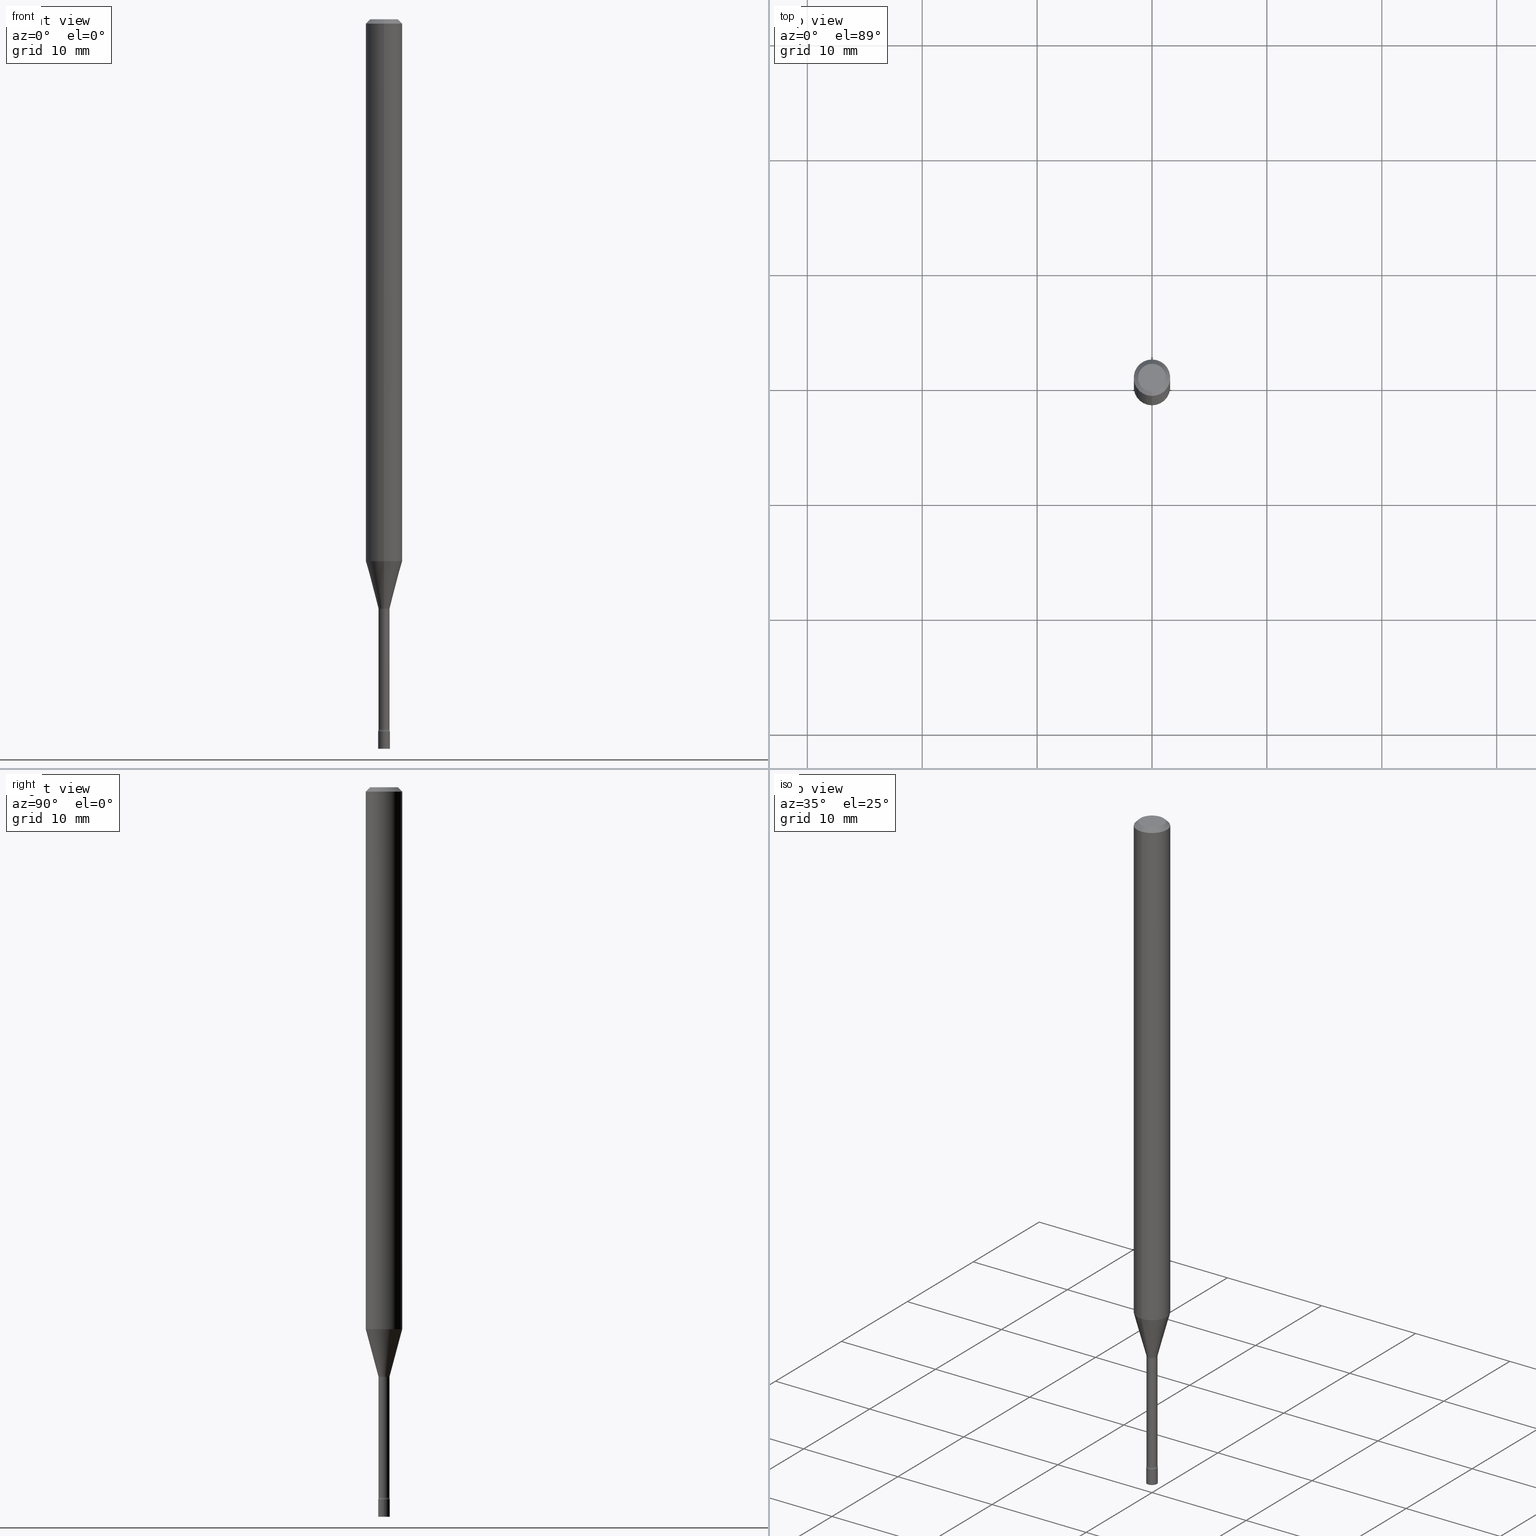
[diagram: canonical four-view strip — front | top / right | iso, engineering-drawing reading convention]
A machine part, canonical four-view strip (front | top / right | iso — engineering-drawing reading convention). The complete STEP part file that produces these views, byte-faithful:
ISO-10303-21;
HEADER;
FILE_DESCRIPTION (( 'STEP AP203' ),
    '1' );
FILE_NAME ('09644.STEP',
    '2024-03-09T00:19:19',
    ( '' ),
    ( '' ),
    'SwSTEP 2.0',
    'SolidWorks 2023',
    '' );
FILE_SCHEMA (( 'CONFIG_CONTROL_DESIGN' ));
ENDSEC;

DATA;
#1 = CC_DESIGN_DATE_AND_TIME_ASSIGNMENT ( #14, #368, ( #100 ) ) ;
#2 = DIRECTION ( 'NONE',  ( -2.445468806185136597E-29, 3.491481338843145583E-15, 1.000000000000000000 ) ) ;
#3 = VECTOR ( 'NONE', #344, 39.37007874015748143 ) ;
#4 = VERTEX_POINT ( 'NONE', #106 ) ;
#5 = VECTOR ( 'NONE', #243, 39.37007874015748143 ) ;
#6 = EDGE_CURVE ( 'NONE', #484, #50, #407, .T. ) ;
#7 = ORIENTED_EDGE ( 'NONE', *, *, #40, .T. ) ;
#8 = EDGE_CURVE ( 'NONE', #135, #253, #389, .T. ) ;
#9 = AXIS2_PLACEMENT_3D ( 'NONE', #271, #317, #361 ) ;
#10 = AXIS2_PLACEMENT_3D ( 'NONE', #200, #305, #53 ) ;
#11 = CARTESIAN_POINT ( 'NONE',  ( 1.335820343228990867E-16, 0.01880000000000003543, -6.564103883140037808E-17 ) ) ;
#12 = EDGE_LOOP ( 'NONE', ( #470, #70, #60, #341 ) ) ;
#13 = CARTESIAN_POINT ( 'NONE',  ( 0.000000000000000000, 0.000000000000000000, 0.000000000000000000 ) ) ;
#14 = DATE_AND_TIME ( #334, #158 ) ;
#15 = ORIENTED_EDGE ( 'NONE', *, *, #241, .F. ) ;
#16 = AXIS2_PLACEMENT_3D ( 'NONE', #323, #118, #285 ) ;
#17 = FACE_OUTER_BOUND ( 'NONE', #456, .T. ) ;
#18 = ADVANCED_FACE ( 'NONE', ( #102 ), #77, .T. ) ;
#19 = FACE_OUTER_BOUND ( 'NONE', #362, .T. ) ;
#20 = CARTESIAN_POINT ( 'NONE',  ( 3.840629472727447874E-16, 0.04749999999999999362, -1.947592745229184119E-16 ) ) ;
#21 = AXIS2_PLACEMENT_3D ( 'NONE', #311, #352, #320 ) ;
#22 = CC_DESIGN_SECURITY_CLASSIFICATION ( #100, ( #175 ) ) ;
#23 = FACE_OUTER_BOUND ( 'NONE', #518, .T. ) ;
#24 = CARTESIAN_POINT ( 'NONE',  ( 4.944676269635571097E-29, -7.059687238041231398E-15, -2.021974787463811207 ) ) ;
#25 = DIRECTION ( 'NONE',  ( 1.000000000000000000, -6.982962677686284065E-15, 0.000000000000000000 ) ) ;
#26 = EDGE_LOOP ( 'NONE', ( #129, #342, #137, #401 ) ) ;
#27 = VECTOR ( 'NONE', #219, 39.37007874015748143 ) ;
#28 = AXIS2_PLACEMENT_3D ( 'NONE', #497, #123, #239 ) ;
#29 = DIRECTION ( 'NONE',  ( -2.445424618103204141E-29, 3.491544618691502502E-15, 1.000000000000000000 ) ) ;
#30 = CARTESIAN_POINT ( 'NONE',  ( 1.378452907375191717E-16, 0.01879999999999157692, -2.434121224617320944 ) ) ;
#31 = EDGE_CURVE ( 'NONE', #113, #166, #96, .T. ) ;
#32 = DIRECTION ( 'NONE',  ( -6.982962677686262766E-15, -1.000000000000000000, 0.000000000000000000 ) ) ;
#33 = DIRECTION ( 'NONE',  ( 1.000000000000000000, -6.982962677686284065E-15, 0.000000000000000000 ) ) ;
#34 = VERTEX_POINT ( 'NONE', #258 ) ;
#35 = PERSON_AND_ORGANIZATION ( #445, #444 ) ;
#36 = AXIS2_PLACEMENT_3D ( 'NONE', #357, #314, #25 ) ;
#37 = AXIS2_PLACEMENT_3D ( 'NONE', #66, #404, #146 ) ;
#38 = VERTEX_POINT ( 'NONE', #261 ) ;
#39 = CC_DESIGN_APPROVAL ( #81, ( #175 ) ) ;
#40 = EDGE_CURVE ( 'NONE', #452, #38, #98, .T. ) ;
#41 = PERSON_AND_ORGANIZATION ( #445, #444 ) ;
#42 = CARTESIAN_POINT ( 'NONE',  ( 4.540931910727726052E-29, -6.483481952121574190E-15, -1.856909379709240415 ) ) ;
#43 = DIRECTION ( 'NONE',  ( -2.445424618103204141E-29, 3.491544618691502502E-15, 1.000000000000000000 ) ) ;
#44 = EDGE_LOOP ( 'NONE', ( #395, #110, #388, #226 ) ) ;
#45 = DIRECTION ( 'NONE',  ( -6.982962677686265922E-15, -1.000000000000000000, 3.491544618691502502E-15 ) ) ;
#46 = AXIS2_PLACEMENT_3D ( 'NONE', #228, #307, #482 ) ;
#47 = PERSON_AND_ORGANIZATION ( #445, #444 ) ;
#48 = DIRECTION ( 'NONE',  ( -6.982962677686265922E-15, -1.000000000000000000, 4.370956789862821150E-15 ) ) ;
#49 = EDGE_CURVE ( 'NONE', #122, #324, #183, .T. ) ;
#50 = VERTEX_POINT ( 'NONE', #393 ) ;
#51 = PERSON_AND_ORGANIZATION ( #445, #444 ) ;
#52 = CARTESIAN_POINT ( 'NONE',  ( 0.000000000000000000, 0.000000000000000000, 0.000000000000000000 ) ) ;
#53 = DIRECTION ( 'NONE',  ( -6.982962677686266711E-15, -1.000000000000000000, 3.491544618691502502E-15 ) ) ;
#54 = CIRCLE ( 'NONE', #284, 0.01500000000000002720 ) ;
#55 = ADVANCED_FACE ( 'NONE', ( #306 ), #265, .F. ) ;
#56 = ORIENTED_EDGE ( 'NONE', *, *, #392, .F. ) ;
#57 = CARTESIAN_POINT ( 'NONE',  ( 3.316907271900976096E-16, 0.04749999999999999362, -1.803038219553823805E-16 ) ) ;
#58 = CARTESIAN_POINT ( 'NONE',  ( 4.440892098501082715E-16, 0.06249999999999995143, -0.01500000000000024751 ) ) ;
#59 = CARTESIAN_POINT ( 'NONE',  ( 1.372137078140477580E-16, 0.01931111260565693613, -2.018092501787273285 ) ) ;
#60 = ORIENTED_EDGE ( 'NONE', *, *, #218, .F. ) ;
#61 = AXIS2_PLACEMENT_3D ( 'NONE', #24, #338, #170 ) ;
#62 = CARTESIAN_POINT ( 'NONE',  ( -1.348487785898990376E-16, -0.01931111260567103249, -2.018092501787273285 ) ) ;
#63 = CC_DESIGN_PERSON_AND_ORGANIZATION_ASSIGNMENT ( #51, #85, ( #100 ) ) ;
#64 = LINE ( 'NONE', #520, #337 ) ;
#65 = DIRECTION ( 'NONE',  ( 6.982962677686265922E-15, 1.000000000000000000, -3.483106191921935554E-15 ) ) ;
#66 = CARTESIAN_POINT ( 'NONE',  ( 6.113672015462842613E-29, -8.728703347107864943E-15, -2.500000000000000000 ) ) ;
#67 =( NAMED_UNIT ( * ) PLANE_ANGLE_UNIT ( ) SI_UNIT ( $, .RADIAN. ) );
#68 = VECTOR ( 'NONE', #410, 39.37007874015748143 ) ;
#69 = DIRECTION ( 'NONE',  ( -2.445424618103204141E-29, 3.491544618691502502E-15, 1.000000000000000000 ) ) ;
#70 = ORIENTED_EDGE ( 'NONE', *, *, #31, .T. ) ;
#71 = CARTESIAN_POINT ( 'NONE',  ( 4.944676269635571097E-29, -7.059687238041231398E-15, -2.021974787463811207 ) ) ;
#72 = CARTESIAN_POINT ( 'NONE',  ( -1.312796983404523498E-16, -0.01880000000000706106, -2.021974787463811207 ) ) ;
#73 = ORIENTED_EDGE ( 'NONE', *, *, #8, .T. ) ;
#74 = FACE_OUTER_BOUND ( 'NONE', #513, .T. ) ;
#75 = ORIENTED_EDGE ( 'NONE', *, *, #8, .F. ) ;
#76 = LENGTH_MEASURE_WITH_UNIT ( LENGTH_MEASURE( 0.02539999999999999897 ), #196 );
#77 = CONICAL_SURFACE ( 'NONE', #326, 0.01931111260566398605, 0.2617993877991497964 ) ;
#78 = DIRECTION ( 'NONE',  ( -6.982962677686265922E-15, -1.000000000000000000, 0.000000000000000000 ) ) ;
#79 = CIRCLE ( 'NONE', #10, 0.04749999999999999362 ) ;
#80 = ORIENTED_EDGE ( 'NONE', *, *, #469, .F. ) ;
#81 = APPROVAL ( #286, 'UNSPECIFIED' ) ;
#82 = APPROVAL_ROLE ( '' ) ;
#83 = ORIENTED_EDGE ( 'NONE', *, *, #348, .T. ) ;
#84 = DIRECTION ( 'NONE',  ( -2.445424618103204141E-29, 3.491544618691502502E-15, 1.000000000000000000 ) ) ;
#85 = PERSON_AND_ORGANIZATION_ROLE ( 'classification_officer' ) ;
#86 = ORIENTED_EDGE ( 'NONE', *, *, #422, .F. ) ;
#87 = CYLINDRICAL_SURFACE ( 'NONE', #516, 0.06250000000000000000 ) ;
#88 = CONICAL_SURFACE ( 'NONE', #408, 0.01931111260566398605, 0.2617993877991497964 ) ;
#89 = CYLINDRICAL_SURFACE ( 'NONE', #347, 0.06250000000000000000 ) ;
#90 = PERSON_AND_ORGANIZATION ( #445, #444 ) ;
#91 = ORIENTED_EDGE ( 'NONE', *, *, #115, .T. ) ;
#92 = CARTESIAN_POINT ( 'NONE',  ( 3.668136927154813270E-31, -5.237316928037264353E-17, -0.01500000000000003067 ) ) ;
#93 = EDGE_CURVE ( 'NONE', #349, #34, #229, .T. ) ;
#94 = CARTESIAN_POINT ( 'NONE',  ( 4.440892098500625669E-16, 0.06250000000000000000, -2.182215386682189064E-16 ) ) ;
#95 = AXIS2_PLACEMENT_3D ( 'NONE', #143, #451, #189 ) ;
#96 = LINE ( 'NONE', #94, #99 ) ;
#97 = DIRECTION ( 'NONE',  ( -6.982962677686267499E-15, -1.000000000000000000, 3.491544618691502896E-15 ) ) ;
#98 = LINE ( 'NONE', #222, #249 ) ;
#99 = VECTOR ( 'NONE', #429, 39.37007874015748143 ) ;
#100 = SECURITY_CLASSIFICATION ( '', '', #495 ) ;
#101 = CARTESIAN_POINT ( 'NONE',  ( 0.000000000000000000, 0.000000000000000000, 0.000000000000000000 ) ) ;
#102 = FACE_OUTER_BOUND ( 'NONE', #152, .T. ) ;
#103 = EDGE_CURVE ( 'NONE', #452, #169, #379, .T. ) ;
#104 = ADVANCED_FACE ( 'NONE', ( #468 ), #464, .T. ) ;
#105 = DIRECTION ( 'NONE',  ( 1.000000000000000000, 0.000000000000000000, 0.000000000000000000 ) ) ;
#106 = CARTESIAN_POINT ( 'NONE',  ( -0.02000000000000000042, -8.481850359790549832E-15, -2.500000000000000000 ) ) ;
#107 = LINE ( 'NONE', #358, #204 ) ;
#108 = DIRECTION ( 'NONE',  ( 2.445424618103204141E-29, -3.491544618691502502E-15, -1.000000000000000000 ) ) ;
#109 = CIRCLE ( 'NONE', #487, 0.06250000000000000000 ) ;
#110 = ORIENTED_EDGE ( 'NONE', *, *, #447, .T. ) ;
#111 = APPROVAL_DATE_TIME ( #319, #475 ) ;
#112 = DIRECTION ( 'NONE',  ( -1.000000000000000000, 6.982962677686265922E-15, -4.883557194083112901E-29 ) ) ;
#113 = VERTEX_POINT ( 'NONE', #260 ) ;
#114 = FACE_OUTER_BOUND ( 'NONE', #26, .T. ) ;
#115 = EDGE_CURVE ( 'NONE', #253, #113, #133, .T. ) ;
#116 = APPROVAL_STATUS ( 'not_yet_approved' ) ;
#117 = AXIS2_PLACEMENT_3D ( 'NONE', #262, #430, #478 ) ;
#118 = DIRECTION ( 'NONE',  ( -2.445468806185136597E-29, 3.491481338843145583E-15, 1.000000000000000000 ) ) ;
#119 = CALENDAR_DATE ( 2024, 8, 3 ) ;
#120 = ORIENTED_EDGE ( 'NONE', *, *, #167, .T. ) ;
#121 = PERSON_AND_ORGANIZATION_ROLE ( 'design_supplier' ) ;
#122 = VERTEX_POINT ( 'NONE', #130 ) ;
#123 = DIRECTION ( 'NONE',  ( -2.445468806185136597E-29, 3.491481338843145583E-15, 1.000000000000000000 ) ) ;
#124 = AXIS2_PLACEMENT_3D ( 'NONE', #471, #474, #131 ) ;
#125 = LOCAL_TIME ( 19, 19, 19.00000000000000000, #202 ) ;
#126 = EDGE_CURVE ( 'NONE', #135, #335, #428, .T. ) ;
#127 = CARTESIAN_POINT ( 'NONE',  ( 7.069943914895155272E-46, -1.009437152458613675E-31, -2.891090513507206278E-17 ) ) ;
#128 = EDGE_LOOP ( 'NONE', ( #201, #56 ) ) ;
#129 = ORIENTED_EDGE ( 'NONE', *, *, #223, .F. ) ;
#130 = CARTESIAN_POINT ( 'NONE',  ( 1.335820343229585471E-16, 0.01879999999999294041, -2.021974787463811207 ) ) ;
#131 = DIRECTION ( 'NONE',  ( 1.000000000000000000, -6.982962677686265922E-15, 4.876176775795935793E-29 ) ) ;
#132 = AXIS2_PLACEMENT_3D ( 'NONE', #517, #488, #519 ) ;
#133 = LINE ( 'NONE', #59, #27 ) ;
#134 = ADVANCED_FACE ( 'NONE', ( #168 ), #507, .T. ) ;
#135 = VERTEX_POINT ( 'NONE', #302 ) ;
#136 = ADVANCED_FACE ( 'NONE', ( #23 ), #293, .F. ) ;
#137 = ORIENTED_EDGE ( 'NONE', *, *, #49, .T. ) ;
#138 = FACE_OUTER_BOUND ( 'NONE', #190, .T. ) ;
#139 = ORIENTED_EDGE ( 'NONE', *, *, #167, .F. ) ;
#140 = CARTESIAN_POINT ( 'NONE',  ( 5.966836068171818574E-29, -8.519368869607266814E-15, -2.440000000000000391 ) ) ;
#141 = VECTOR ( 'NONE', #216, 39.37007874015748143 ) ;
#142 = ADVANCED_FACE ( 'NONE', ( #19 ), #177, .T. ) ;
#143 = CARTESIAN_POINT ( 'NONE',  ( 6.113672015462842613E-29, -8.728703347107864943E-15, -2.500000000000000000 ) ) ;
#144 =( CONVERSION_BASED_UNIT ( 'INCH', #76 ) LENGTH_UNIT ( ) NAMED_UNIT ( #353 ) );
#145 = ORIENTED_EDGE ( 'NONE', *, *, #187, .F. ) ;
#146 = DIRECTION ( 'NONE',  ( 1.000000000000000000, -6.982962677686284065E-15, 0.000000000000000000 ) ) ;
#147 = LINE ( 'NONE', #316, #68 ) ;
#148 = DIRECTION ( 'NONE',  ( -6.982962677686265922E-15, -1.000000000000000000, 3.491544618691502502E-15 ) ) ;
#149 = ADVANCED_FACE ( 'NONE', ( #17 ), #299, .T. ) ;
#150 = CIRCLE ( 'NONE', #46, 0.06250000000000000000 ) ;
#151 = PLANE ( 'NONE',  #21 ) ;
#152 = EDGE_LOOP ( 'NONE', ( #73, #91, #405, #421 ) ) ;
#153 = ORIENTED_EDGE ( 'NONE', *, *, #392, .T. ) ;
#154 = PERSON_AND_ORGANIZATION_ROLE ( 'design_owner' ) ;
#155 = CYLINDRICAL_SURFACE ( 'NONE', #16, 0.02000000000000000042 ) ;
#156 = AXIS2_PLACEMENT_3D ( 'NONE', #273, #278, #181 ) ;
#157 = FACE_OUTER_BOUND ( 'NONE', #291, .T. ) ;
#158 = LOCAL_TIME ( 19, 19, 19.00000000000000000, #245 ) ;
#159 = DATE_AND_TIME ( #119, #276 ) ;
#160 = ORIENTED_EDGE ( 'NONE', *, *, #187, .T. ) ;
#161 = CARTESIAN_POINT ( 'NONE',  ( 5.952459966126715215E-29, -8.498842863055376758E-15, -2.434121224617320944 ) ) ;
#162 = ORIENTED_EDGE ( 'NONE', *, *, #126, .T. ) ;
#163 = CIRCLE ( 'NONE', #9, 0.06250000000000000000 ) ;
#164 = AXIS2_PLACEMENT_3D ( 'NONE', #231, #2, #33 ) ;
#165 = UNCERTAINTY_MEASURE_WITH_UNIT (LENGTH_MEASURE( 1.000000000000000082E-05 ), #144, 'distance_accuracy_value', 'NONE');
#166 = VERTEX_POINT ( 'NONE', #58 ) ;
#167 = EDGE_CURVE ( 'NONE', #484, #34, #193, .T. ) ;
#168 = FACE_OUTER_BOUND ( 'NONE', #417, .T. ) ;
#169 = VERTEX_POINT ( 'NONE', #20 ) ;
#170 = DIRECTION ( 'NONE',  ( -6.982962677686265922E-15, -1.000000000000000000, 3.491544618691502502E-15 ) ) ;
#171 = DIRECTION ( 'NONE',  ( -2.445424618103204141E-29, 3.491544618691502502E-15, 1.000000000000000000 ) ) ;
#172 = DIRECTION ( 'NONE',  ( -2.445424618103204141E-29, 3.491544618691502502E-15, 1.000000000000000000 ) ) ;
#173 = DIRECTION ( 'NONE',  ( -2.445424618103204141E-29, 3.491544618691502502E-15, 1.000000000000000000 ) ) ;
#174 = CC_DESIGN_PERSON_AND_ORGANIZATION_ASSIGNMENT ( #35, #192, ( #440 ) ) ;
#175 = PRODUCT_DEFINITION_FORMATION_WITH_SPECIFIED_SOURCE ( 'ANY', '', #371, .NOT_KNOWN. ) ;
#176 = CC_DESIGN_APPROVAL ( #366, ( #100 ) ) ;
#177 = CYLINDRICAL_SURFACE ( 'NONE', #431, 0.01880000000000003543 ) ;
#178 = ORIENTED_EDGE ( 'NONE', *, *, #198, .T. ) ;
#179 = ORIENTED_EDGE ( 'NONE', *, *, #348, .F. ) ;
#180 = DIRECTION ( 'NONE',  ( -2.445424618103204141E-29, 3.491544618691502502E-15, 1.000000000000000000 ) ) ;
#181 = DIRECTION ( 'NONE',  ( -6.982962677686265922E-15, -1.000000000000000000, 3.491544618691502502E-15 ) ) ;
#182 = ADVANCED_FACE ( 'NONE', ( #138 ), #301, .F. ) ;
#183 = CIRCLE ( 'NONE', #274, 0.01880000000000000074 ) ;
#184 = APPLICATION_PROTOCOL_DEFINITION ( 'international standard', 'config_control_design', 1994, #269 ) ;
#185 = ORIENTED_EDGE ( 'NONE', *, *, #6, .F. ) ;
#186 = CARTESIAN_POINT ( 'NONE',  ( -0.02000000000000000042, -8.481850359790549832E-15, -2.440000000000000391 ) ) ;
#187 = EDGE_CURVE ( 'NONE', #4, #313, #266, .T. ) ;
#188 = CARTESIAN_POINT ( 'NONE',  ( 5.952567525274821981E-29, -8.498688832233400382E-15, -2.434121224617320944 ) ) ;
#189 = DIRECTION ( 'NONE',  ( 1.000000000000000000, -6.982962677686284065E-15, 0.000000000000000000 ) ) ;
#190 = EDGE_LOOP ( 'NONE', ( #139, #214, #246, #288 ) ) ;
#191 = CC_DESIGN_PERSON_AND_ORGANIZATION_ASSIGNMENT ( #47, #296, ( #175 ) ) ;
#192 = PERSON_AND_ORGANIZATION_ROLE ( 'creator' ) ;
#193 = CIRCLE ( 'NONE', #498, 0.01499999999999996822 ) ;
#194 = LOCAL_TIME ( 19, 19, 19.00000000000000000, #437 ) ;
#195 = EDGE_LOOP ( 'NONE', ( #283, #80, #449, #244 ) ) ;
#196 =( LENGTH_UNIT ( ) NAMED_UNIT ( * ) SI_UNIT ( $, .METRE. ) );
#197 = DIRECTION ( 'NONE',  ( 1.000000000000000000, -7.105427357601001070E-15, 4.926316283496719883E-29 ) ) ;
#198 = EDGE_CURVE ( 'NONE', #199, #510, #336, .T. ) ;
#199 = VERTEX_POINT ( 'NONE', #186 ) ;
#200 = CARTESIAN_POINT ( 'NONE',  ( 7.069943914895155272E-46, -1.009437152458613675E-31, -2.891090513507206278E-17 ) ) ;
#201 = ORIENTED_EDGE ( 'NONE', *, *, #93, .F. ) ;
#202 = COORDINATED_UNIVERSAL_TIME_OFFSET ( 5, 0, .BEHIND. ) ;
#203 = ORIENTED_EDGE ( 'NONE', *, *, #223, .T. ) ;
#204 = VECTOR ( 'NONE', #237, 39.37007874015748143 ) ;
#205 = CARTESIAN_POINT ( 'NONE',  ( -3.773273898774340269E-16, -0.04749999999999999362, 1.369374642527742863E-16 ) ) ;
#206 = AXIS2_PLACEMENT_3D ( 'NONE', #275, #446, #105 ) ;
#207 = PERSON_AND_ORGANIZATION ( #445, #444 ) ;
#208 = CARTESIAN_POINT ( 'NONE',  ( 0.000000000000000000, 0.000000000000000000, 0.000000000000000000 ) ) ;
#209 = ORIENTED_EDGE ( 'NONE', *, *, #31, .F. ) ;
#210 = COORDINATED_UNIVERSAL_TIME_OFFSET ( 5, 0, .BEHIND. ) ;
#211 = ORIENTED_EDGE ( 'NONE', *, *, #422, .T. ) ;
#212 = DIRECTION ( 'NONE',  ( -2.445424618103204141E-29, 3.491544618691502502E-15, 1.000000000000000000 ) ) ;
#213 = CIRCLE ( 'NONE', #499, 0.01880000000000000074 ) ;
#214 = ORIENTED_EDGE ( 'NONE', *, *, #459, .F. ) ;
#215 = DIRECTION ( 'NONE',  ( 6.982962677686265922E-15, 1.000000000000000000, -3.483106191921935554E-15 ) ) ;
#216 = DIRECTION ( 'NONE',  ( -2.445424618103204141E-29, 3.491544618691502896E-15, 1.000000000000000000 ) ) ;
#217 = CARTESIAN_POINT ( 'NONE',  ( 2.401634446869736943E-16, 0.03379999999999155208, -2.434121224617320944 ) ) ;
#218 = EDGE_CURVE ( 'NONE', #38, #166, #163, .T. ) ;
#219 = DIRECTION ( 'NONE',  ( 1.839019923739597160E-15, 0.2588190451025245142, 0.9659258262890673130 ) ) ;
#220 = CLOSED_SHELL ( 'NONE', ( #461, #149, #466, #134 ) ) ;
#221 = AXIS2_PLACEMENT_3D ( 'NONE', #71, #403, #272 ) ;
#222 = CARTESIAN_POINT ( 'NONE',  ( -4.287811248607203282E-16, -0.06250000000000005551, -0.01499999999999981209 ) ) ;
#223 = EDGE_CURVE ( 'NONE', #253, #135, #479, .T. ) ;
#224 = FACE_OUTER_BOUND ( 'NONE', #128, .T. ) ;
#225 = APPLICATION_PROTOCOL_DEFINITION ( 'international standard', 'config_control_design', 1994, #359 ) ;
#226 = ORIENTED_EDGE ( 'NONE', *, *, #496, .F. ) ;
#227 = ORIENTED_EDGE ( 'NONE', *, *, #441, .F. ) ;
#228 = CARTESIAN_POINT ( 'NONE',  ( 3.668136927154813270E-31, -5.237316928037264353E-17, -0.01500000000000003067 ) ) ;
#229 = CIRCLE ( 'NONE', #492, 0.02000000000000000042 ) ;
#230 = PERSON_AND_ORGANIZATION ( #445, #444 ) ;
#231 = CARTESIAN_POINT ( 'NONE',  ( 5.966943887091733341E-29, -8.519214466777275048E-15, -2.440000000000000391 ) ) ;
#232 = EDGE_CURVE ( 'NONE', #135, #324, #238, .T. ) ;
#233 = CARTESIAN_POINT ( 'NONE',  ( 0.02000000000000000042, -8.868362600661589961E-15, -2.500000000000000000 ) ) ;
#234 = ORIENTED_EDGE ( 'NONE', *, *, #332, .T. ) ;
#235 = CARTESIAN_POINT ( 'NONE',  ( 3.668136927154813270E-31, -5.237316928037264353E-17, -0.01500000000000003067 ) ) ;
#236 = CALENDAR_DATE ( 2024, 8, 3 ) ;
#237 = DIRECTION ( 'NONE',  ( -2.445468806185136877E-29, 3.491481338843145188E-15, 1.000000000000000000 ) ) ;
#238 = CIRCLE ( 'NONE', #443, 0.01500000000000002720 ) ;
#239 = DIRECTION ( 'NONE',  ( 1.000000000000000000, -6.982962677686265922E-15, 4.876176775795935793E-29 ) ) ;
#240 = ORIENTED_EDGE ( 'NONE', *, *, #436, .T. ) ;
#241 = EDGE_CURVE ( 'NONE', #4, #199, #107, .T. ) ;
#242 = APPROVAL_STATUS ( 'not_yet_approved' ) ;
#243 = DIRECTION ( 'NONE',  ( -2.445424618103204141E-29, 3.491544618691502896E-15, 1.000000000000000000 ) ) ;
#244 = ORIENTED_EDGE ( 'NONE', *, *, #315, .T. ) ;
#245 = COORDINATED_UNIVERSAL_TIME_OFFSET ( 5, 0, .BEHIND. ) ;
#246 = ORIENTED_EDGE ( 'NONE', *, *, #294, .T. ) ;
#247 = APPROVAL_ROLE ( '' ) ;
#248 = ORIENTED_EDGE ( 'NONE', *, *, #315, .F. ) ;
#249 = VECTOR ( 'NONE', #425, 39.37007874015748143 ) ;
#250 = CIRCLE ( 'NONE', #267, 0.01499999999999997689 ) ;
#251 = MANIFOLD_SOLID_BREP ( 'Body-Move/Copy2[2]', #355 ) ;
#252 = MANIFOLD_SOLID_BREP ( 'Body-Move/Copy2[1]', #220 ) ;
#253 = VERTEX_POINT ( 'NONE', #515 ) ;
#254 = ORIENTED_EDGE ( 'NONE', *, *, #218, .T. ) ;
#255 = COORDINATED_UNIVERSAL_TIME_OFFSET ( 5, 0, .BEHIND. ) ;
#256 = DIRECTION ( 'NONE',  ( -1.000000000000000000, 6.982962677686265922E-15, -4.876176775795935793E-29 ) ) ;
#257 = AXIS2_PLACEMENT_3D ( 'NONE', #127, #173, #297 ) ;
#258 = CARTESIAN_POINT ( 'NONE',  ( 1.421085471520795991E-16, 0.01999999999999146905, -2.440000000000000391 ) ) ;
#259 = CIRCLE ( 'NONE', #391, 0.06250000000000000000 ) ;
#260 = CARTESIAN_POINT ( 'NONE',  ( 4.440892098501077785E-16, 0.06249999999999350520, -1.856909379709240637 ) ) ;
#261 = CARTESIAN_POINT ( 'NONE',  ( -4.364351673553912750E-16, -0.06250000000000005551, -0.01499999999999981209 ) ) ;
#262 = CARTESIAN_POINT ( 'NONE',  ( 5.952459966126715215E-29, -8.498842863055376758E-15, -2.434121224617320944 ) ) ;
#263 = ADVANCED_FACE ( 'NONE', ( #486 ), #509, .F. ) ;
#264 = ADVANCED_BREP_SHAPE_REPRESENTATION ( '09644', ( #252, #251, #206 ), #424 ) ;
#265 = PLANE ( 'NONE',  #308 ) ;
#266 = CIRCLE ( 'NONE', #37, 0.02000000000000000042 ) ;
#267 = AXIS2_PLACEMENT_3D ( 'NONE', #399, #112, #32 ) ;
#268 = CARTESIAN_POINT ( 'NONE',  ( 4.935093085480082368E-29, -7.046260014637024819E-15, -2.018092501787273285 ) ) ;
#269 = APPLICATION_CONTEXT ( 'configuration controlled 3d designs of mechanical parts and assemblies' ) ;
#270 = CARTESIAN_POINT ( 'NONE',  ( -4.364351673553463099E-16, -0.06250000000000649480, -1.856909379709239971 ) ) ;
#271 = CARTESIAN_POINT ( 'NONE',  ( 3.668136927154813270E-31, -5.237316928037264353E-17, -0.01500000000000003067 ) ) ;
#272 = DIRECTION ( 'NONE',  ( -6.982962677686265922E-15, -1.000000000000000000, 3.491544618691502502E-15 ) ) ;
#273 = CARTESIAN_POINT ( 'NONE',  ( 5.952567525274821981E-29, -8.498688832233400382E-15, -2.434121224617320944 ) ) ;
#274 = AXIS2_PLACEMENT_3D ( 'NONE', #346, #304, #385 ) ;
#275 = CARTESIAN_POINT ( 'NONE',  ( 0.000000000000000000, 0.000000000000000000, 0.000000000000000000 ) ) ;
#276 = LOCAL_TIME ( 19, 19, 19.00000000000000000, #255 ) ;
#277 = CC_DESIGN_DATE_AND_TIME_ASSIGNMENT ( #159, #373, ( #440 ) ) ;
#278 = DIRECTION ( 'NONE',  ( -2.445424618103204141E-29, 3.491544618691502502E-15, 1.000000000000000000 ) ) ;
#279 = CARTESIAN_POINT ( 'NONE',  ( 4.944586922447996787E-29, -7.059815188299163512E-15, -2.021974787463811207 ) ) ;
#280 = CYLINDRICAL_SURFACE ( 'NONE', #381, 0.01880000000000003543 ) ;
#281 = EDGE_LOOP ( 'NONE', ( #491, #7, #254, #398 ) ) ;
#282 = DIRECTION ( 'NONE',  ( -6.982962677686265922E-15, -1.000000000000000000, 0.000000000000000000 ) ) ;
#283 = ORIENTED_EDGE ( 'NONE', *, *, #40, .F. ) ;
#284 = AXIS2_PLACEMENT_3D ( 'NONE', #374, #197, #455 ) ;
#285 = DIRECTION ( 'NONE',  ( 1.000000000000000000, -6.982962677686265922E-15, 4.876176775795935793E-29 ) ) ;
#286 = APPROVAL_STATUS ( 'not_yet_approved' ) ;
#287 = ORIENTED_EDGE ( 'NONE', *, *, #469, .T. ) ;
#288 = ORIENTED_EDGE ( 'NONE', *, *, #93, .T. ) ;
#289 = PRODUCT_DEFINITION_SHAPE ( 'NONE', 'NONE',  #440 ) ;
#290 = ORIENTED_EDGE ( 'NONE', *, *, #241, .T. ) ;
#291 = EDGE_LOOP ( 'NONE', ( #209, #240, #505, #248 ) ) ;
#292 = ORIENTED_EDGE ( 'NONE', *, *, #500, .T. ) ;
#293 = TOROIDAL_SURFACE ( 'NONE', #61, 0.03380000000000000365, 0.01500000000000002373 ) ;
#294 = EDGE_CURVE ( 'NONE', #50, #349, #250, .T. ) ;
#295 = CC_DESIGN_APPROVAL ( #475, ( #440 ) ) ;
#296 = PERSON_AND_ORGANIZATION_ROLE ( 'creator' ) ;
#297 = DIRECTION ( 'NONE',  ( -6.982962677686266711E-15, -1.000000000000000000, 3.491544618691502502E-15 ) ) ;
#298 = ORIENTED_EDGE ( 'NONE', *, *, #198, .F. ) ;
#299 = PLANE ( 'NONE',  #124 ) ;
#300 = LINE ( 'NONE', #426, #141 ) ;
#301 = TOROIDAL_SURFACE ( 'NONE', #156, 0.03380000000000004529, 0.01499999999999997169 ) ;
#302 = CARTESIAN_POINT ( 'NONE',  ( -1.348487785898990376E-16, -0.01931111260567103249, -2.018092501787273285 ) ) ;
#303 = AXIS2_PLACEMENT_3D ( 'NONE', #235, #108, #65 ) ;
#304 = DIRECTION ( 'NONE',  ( -2.445424618103204141E-29, 3.491544618691502502E-15, 1.000000000000000000 ) ) ;
#305 = DIRECTION ( 'NONE',  ( -2.445424618103204141E-29, 3.491544618691502502E-15, 1.000000000000000000 ) ) ;
#306 = FACE_OUTER_BOUND ( 'NONE', #331, .T. ) ;
#307 = DIRECTION ( 'NONE',  ( -2.445424618103204141E-29, 3.491544618691502502E-15, 1.000000000000000000 ) ) ;
#308 = AXIS2_PLACEMENT_3D ( 'NONE', #57, #512, #506 ) ;
#309 = CIRCLE ( 'NONE', #493, 0.01880000000000007360 ) ;
#310 = APPROVAL_PERSON_ORGANIZATION ( #90, #366, #247 ) ;
#311 = CARTESIAN_POINT ( 'NONE',  ( 1.396592535537849721E-16, 0.01999999999999147945, -2.440000000000000391 ) ) ;
#312 =( NAMED_UNIT ( * ) SI_UNIT ( $, .STERADIAN. ) SOLID_ANGLE_UNIT ( ) );
#313 = VERTEX_POINT ( 'NONE', #233 ) ;
#314 = DIRECTION ( 'NONE',  ( -2.445468806185136597E-29, 3.491481338843145583E-15, 1.000000000000000000 ) ) ;
#315 = EDGE_CURVE ( 'NONE', #166, #38, #150, .T. ) ;
#316 = CARTESIAN_POINT ( 'NONE',  ( -1.312796983405020727E-16, -0.01880000000000003543, 6.564103883140037808E-17 ) ) ;
#317 = DIRECTION ( 'NONE',  ( -2.445424618103204141E-29, 3.491544618691502502E-15, 1.000000000000000000 ) ) ;
#318 = AXIS2_PLACEMENT_3D ( 'NONE', #514, #390, #256 ) ;
#319 = DATE_AND_TIME ( #236, #194 ) ;
#320 = DIRECTION ( 'NONE',  ( -6.982962677686265922E-15, -1.000000000000000000, 3.491544618691502896E-15 ) ) ;
#321 = EDGE_LOOP ( 'NONE', ( #83, #290, #477, #86 ) ) ;
#322 = LINE ( 'NONE', #418, #473 ) ;
#323 = CARTESIAN_POINT ( 'NONE',  ( 0.000000000000000000, 0.000000000000000000, 0.000000000000000000 ) ) ;
#324 = VERTEX_POINT ( 'NONE', #72 ) ;
#325 = ADVANCED_FACE ( 'NONE', ( #448 ), #280, .T. ) ;
#326 = AXIS2_PLACEMENT_3D ( 'NONE', #339, #171, #343 ) ;
#327 = CIRCLE ( 'NONE', #164, 0.02000000000000000042 ) ;
#328 = DIRECTION ( 'NONE',  ( -2.445424618103204141E-29, 3.491544618691502502E-15, 1.000000000000000000 ) ) ;
#329 = ORIENTED_EDGE ( 'NONE', *, *, #49, .F. ) ;
#330 = FACE_OUTER_BOUND ( 'NONE', #12, .T. ) ;
#331 = EDGE_LOOP ( 'NONE', ( #287, #369 ) ) ;
#332 = EDGE_CURVE ( 'NONE', #510, #199, #327, .T. ) ;
#333 = CYLINDRICAL_SURFACE ( 'NONE', #28, 0.02000000000000000042 ) ;
#334 = CALENDAR_DATE ( 2024, 8, 3 ) ;
#335 = VERTEX_POINT ( 'NONE', #270 ) ;
#336 = CIRCLE ( 'NONE', #36, 0.02000000000000000042 ) ;
#337 = VECTOR ( 'NONE', #402, 39.37007874015748143 ) ;
#338 = DIRECTION ( 'NONE',  ( -2.445424618103204141E-29, 3.491544618691502502E-15, 1.000000000000000000 ) ) ;
#339 = CARTESIAN_POINT ( 'NONE',  ( 4.935093085480082368E-29, -7.046260014637024819E-15, -2.018092501787273285 ) ) ;
#340 = EDGE_CURVE ( 'NONE', #169, #166, #64, .T. ) ;
#341 = ORIENTED_EDGE ( 'NONE', *, *, #472, .F. ) ;
#342 = ORIENTED_EDGE ( 'NONE', *, *, #441, .T. ) ;
#343 = DIRECTION ( 'NONE',  ( -6.982962677686265922E-15, -1.000000000000000000, 0.000000000000000000 ) ) ;
#344 = DIRECTION ( 'NONE',  ( -1.807323732225326984E-15, -0.2588190451025177419, 0.9659258262890690894 ) ) ;
#345 = PRODUCT_RELATED_PRODUCT_CATEGORY ( 'detail', '', ( #371 ) ) ;
#346 = CARTESIAN_POINT ( 'NONE',  ( 4.944586922447996787E-29, -7.059815188299163512E-15, -2.021974787463811207 ) ) ;
#347 = AXIS2_PLACEMENT_3D ( 'NONE', #13, #328, #494 ) ;
#348 = EDGE_CURVE ( 'NONE', #313, #4, #411, .T. ) ;
#349 = VERTEX_POINT ( 'NONE', #354 ) ;
#350 = DIRECTION ( 'NONE',  ( 7.105427357601003436E-15, 1.000000000000000000, 0.000000000000000000 ) ) ;
#351 = CC_DESIGN_PERSON_AND_ORGANIZATION_ASSIGNMENT ( #207, #121, ( #175 ) ) ;
#352 = DIRECTION ( 'NONE',  ( -2.445424618103203300E-29, 3.491544618691502896E-15, 1.000000000000000000 ) ) ;
#353 = DIMENSIONAL_EXPONENTS ( 1.000000000000000000, 0.000000000000000000, 0.000000000000000000, 0.000000000000000000, 0.000000000000000000, 0.000000000000000000, 0.000000000000000000 ) ;
#354 = CARTESIAN_POINT ( 'NONE',  ( -1.396592535536655829E-16, -0.02000000000000850750, -2.440000000000000391 ) ) ;
#355 = CLOSED_SHELL ( 'NONE', ( #508, #325, #263, #104, #409, #18, #394, #427, #480, #55, #377, #182, #142, #136 ) ) ;
#356 = ORIENTED_EDGE ( 'NONE', *, *, #232, .T. ) ;
#357 = CARTESIAN_POINT ( 'NONE',  ( 5.966943887091733341E-29, -8.519214466777275048E-15, -2.440000000000000391 ) ) ;
#358 = CARTESIAN_POINT ( 'NONE',  ( -0.02000000000000000042, 1.421085471520200401E-16, -9.837870180509812545E-31 ) ) ;
#359 = APPLICATION_CONTEXT ( 'configuration controlled 3d designs of mechanical parts and assemblies' ) ;
#360 = APPROVAL_ROLE ( '' ) ;
#361 = DIRECTION ( 'NONE',  ( -6.982962677686265922E-15, -1.000000000000000000, 3.483106191921935554E-15 ) ) ;
#362 = EDGE_LOOP ( 'NONE', ( #380, #420, #376, #329 ) ) ;
#363 = AXIS2_PLACEMENT_3D ( 'NONE', #268, #172, #434 ) ;
#364 = APPROVAL_PERSON_ORGANIZATION ( #503, #81, #82 ) ;
#365 = EDGE_LOOP ( 'NONE', ( #15, #160, #211, #298 ) ) ;
#366 = APPROVAL ( #242, 'UNSPECIFIED' ) ;
#367 = DIRECTION ( 'NONE',  ( -2.445424618103204141E-29, 3.491544618691502502E-15, 1.000000000000000000 ) ) ;
#368 = DATE_TIME_ROLE ( 'classification_date' ) ;
#369 = ORIENTED_EDGE ( 'NONE', *, *, #103, .T. ) ;
#370 = AXIS2_PLACEMENT_3D ( 'NONE', #92, #432, #215 ) ;
#371 = PRODUCT ( '09644', '09644', '', ( #439 ) ) ;
#372 = CARTESIAN_POINT ( 'NONE',  ( 4.540931910727726052E-29, -6.483481952121574190E-15, -1.856909379709240415 ) ) ;
#373 = DATE_TIME_ROLE ( 'creation_date' ) ;
#374 = CARTESIAN_POINT ( 'NONE',  ( 2.401634446869632912E-16, 0.03379999999999293986, -2.021974787463811207 ) ) ;
#375 = APPROVAL_DATE_TIME ( #413, #366 ) ;
#376 = ORIENTED_EDGE ( 'NONE', *, *, #496, .T. ) ;
#377 = ADVANCED_FACE ( 'NONE', ( #224 ), #151, .F. ) ;
#378 = SHAPE_DEFINITION_REPRESENTATION ( #289, #264 ) ;
#379 = CIRCLE ( 'NONE', #257, 0.04749999999999999362 ) ;
#380 = ORIENTED_EDGE ( 'NONE', *, *, #447, .F. ) ;
#381 = AXIS2_PLACEMENT_3D ( 'NONE', #101, #29, #442 ) ;
#382 = DIRECTION ( 'NONE',  ( -2.445424618103204141E-29, 3.491544618691502502E-15, 1.000000000000000000 ) ) ;
#383 = EDGE_LOOP ( 'NONE', ( #185, #120, #153, #504 ) ) ;
#384 = CC_DESIGN_PERSON_AND_ORGANIZATION_ASSIGNMENT ( #41, #154, ( #371 ) ) ;
#385 = DIRECTION ( 'NONE',  ( -6.982962677686265922E-15, -1.000000000000000000, 0.000000000000000000 ) ) ;
#386 = FACE_OUTER_BOUND ( 'NONE', #195, .T. ) ;
#387 = DIRECTION ( 'NONE',  ( 1.000000000000000000, -7.105427357601001070E-15, 4.926316283496719883E-29 ) ) ;
#388 = ORIENTED_EDGE ( 'NONE', *, *, #500, .F. ) ;
#389 = CIRCLE ( 'NONE', #363, 0.01931111260566398605 ) ;
#390 = DIRECTION ( 'NONE',  ( 2.438088387897960049E-29, -3.491481338843145188E-15, -1.000000000000000000 ) ) ;
#391 = AXIS2_PLACEMENT_3D ( 'NONE', #372, #367, #414 ) ;
#392 = EDGE_CURVE ( 'NONE', #34, #349, #433, .T. ) ;
#393 = CARTESIAN_POINT ( 'NONE',  ( -1.312796983404428095E-16, -0.01880000000000857374, -2.434121224617320944 ) ) ;
#394 = ADVANCED_FACE ( 'NONE', ( #74 ), #88, .T. ) ;
#395 = ORIENTED_EDGE ( 'NONE', *, *, #459, .T. ) ;
#396 = DIRECTION ( 'NONE',  ( -2.445424618103204141E-29, 3.491544618691502502E-15, 1.000000000000000000 ) ) ;
#397 = DIRECTION ( 'NONE',  ( -2.445424618103204141E-29, 3.491544618691502502E-15, 1.000000000000000000 ) ) ;
#398 = ORIENTED_EDGE ( 'NONE', *, *, #340, .F. ) ;
#399 = CARTESIAN_POINT ( 'NONE',  ( -2.360241385057365982E-16, -0.03380000000000854543, -2.434121224617320944 ) ) ;
#400 = AXIS2_PLACEMENT_3D ( 'NONE', #140, #396, #483 ) ;
#401 = ORIENTED_EDGE ( 'NONE', *, *, #232, .F. ) ;
#402 = DIRECTION ( 'NONE',  ( 4.937700262164548042E-15, 0.7071067811865451302, -0.7071067811865499042 ) ) ;
#403 = DIRECTION ( 'NONE',  ( -2.445424618103204141E-29, 3.491544618691502502E-15, 1.000000000000000000 ) ) ;
#404 = DIRECTION ( 'NONE',  ( -2.445468806185136597E-29, 3.491481338843145583E-15, 1.000000000000000000 ) ) ;
#405 = ORIENTED_EDGE ( 'NONE', *, *, #453, .F. ) ;
#406 = CARTESIAN_POINT ( 'NONE',  ( 4.935093085480082368E-29, -7.046260014637024819E-15, -2.018092501787273285 ) ) ;
#407 = CIRCLE ( 'NONE', #117, 0.01880000000000007360 ) ;
#408 = AXIS2_PLACEMENT_3D ( 'NONE', #406, #180, #282 ) ;
#409 = ADVANCED_FACE ( 'NONE', ( #330 ), #87, .T. ) ;
#410 = DIRECTION ( 'NONE',  ( -2.445424618103204141E-29, 3.491544618691502896E-15, 1.000000000000000000 ) ) ;
#411 = CIRCLE ( 'NONE', #95, 0.02000000000000000042 ) ;
#412 = FACE_OUTER_BOUND ( 'NONE', #365, .T. ) ;
#413 = DATE_AND_TIME ( #423, #416 ) ;
#414 = DIRECTION ( 'NONE',  ( -6.982962677686265922E-15, -1.000000000000000000, 4.370956789862821150E-15 ) ) ;
#415 = ORIENTED_EDGE ( 'NONE', *, *, #436, .F. ) ;
#416 = LOCAL_TIME ( 19, 19, 19.00000000000000000, #210 ) ;
#417 = EDGE_LOOP ( 'NONE', ( #179, #145 ) ) ;
#418 = CARTESIAN_POINT ( 'NONE',  ( 0.02000000000000000042, -1.396592535537253145E-16, 9.752353551591871936E-31 ) ) ;
#419 = CALENDAR_DATE ( 2024, 8, 3 ) ;
#420 = ORIENTED_EDGE ( 'NONE', *, *, #6, .T. ) ;
#421 = ORIENTED_EDGE ( 'NONE', *, *, #126, .F. ) ;
#422 = EDGE_CURVE ( 'NONE', #313, #510, #322, .T. ) ;
#423 = CALENDAR_DATE ( 2024, 8, 3 ) ;
#424 =( GEOMETRIC_REPRESENTATION_CONTEXT ( 3 ) GLOBAL_UNCERTAINTY_ASSIGNED_CONTEXT ( ( #165 ) ) GLOBAL_UNIT_ASSIGNED_CONTEXT ( ( #144, #67, #312 ) ) REPRESENTATION_CONTEXT ( 'NONE', 'WORKASPACE' ) );
#425 = DIRECTION ( 'NONE',  ( -4.851104656540964275E-15, -0.7071067811865500152, -0.7071067811865450192 ) ) ;
#426 = CARTESIAN_POINT ( 'NONE',  ( -4.364351673553916201E-16, -0.06250000000000000000, 2.182215386682189064E-16 ) ) ;
#427 = ADVANCED_FACE ( 'NONE', ( #157 ), #89, .T. ) ;
#428 = LINE ( 'NONE', #62, #3 ) ;
#429 = DIRECTION ( 'NONE',  ( -2.445424618103204141E-29, 3.491544618691502896E-15, 1.000000000000000000 ) ) ;
#430 = DIRECTION ( 'NONE',  ( -2.445424618103204141E-29, 3.491544618691502502E-15, 1.000000000000000000 ) ) ;
#431 = AXIS2_PLACEMENT_3D ( 'NONE', #52, #212, #97 ) ;
#432 = DIRECTION ( 'NONE',  ( 2.445424618103204141E-29, -3.491544618691502502E-15, -1.000000000000000000 ) ) ;
#433 = CIRCLE ( 'NONE', #400, 0.02000000000000000042 ) ;
#434 = DIRECTION ( 'NONE',  ( -6.982962677686265922E-15, -1.000000000000000000, 0.000000000000000000 ) ) ;
#435 = DIRECTION ( 'NONE',  ( -1.000000000000000000, 6.982962677686265922E-15, -4.883557194083112901E-29 ) ) ;
#436 = EDGE_CURVE ( 'NONE', #113, #335, #109, .T. ) ;
#437 = COORDINATED_UNIVERSAL_TIME_OFFSET ( 5, 0, .BEHIND. ) ;
#438 = DIRECTION ( 'NONE',  ( -6.982962677686263555E-15, -1.000000000000000000, 0.000000000000000000 ) ) ;
#439 = MECHANICAL_CONTEXT ( 'NONE', #359, 'mechanical' ) ;
#440 = PRODUCT_DEFINITION ( 'UNKNOWN', '', #175, #502 ) ;
#441 = EDGE_CURVE ( 'NONE', #253, #122, #54, .T. ) ;
#442 = DIRECTION ( 'NONE',  ( -6.982962677686267499E-15, -1.000000000000000000, 3.491544618691502896E-15 ) ) ;
#443 = AXIS2_PLACEMENT_3D ( 'NONE', #485, #435, #438 ) ;
#444 = ORGANIZATION ( 'UNSPECIFIED', 'UNSPECIFIED', '' ) ;
#445 = PERSON ( 'UNSPECIFIED', 'UNSPECIFIED', 'UNSPECIFIED', ('UNSPECIFIED'), ('UNSPECIFIED'), ('UNSPECIFIED') ) ;
#446 = DIRECTION ( 'NONE',  ( 0.000000000000000000, 0.000000000000000000, 1.000000000000000000 ) ) ;
#447 = EDGE_CURVE ( 'NONE', #484, #122, #490, .T. ) ;
#448 = FACE_OUTER_BOUND ( 'NONE', #44, .T. ) ;
#449 = ORIENTED_EDGE ( 'NONE', *, *, #340, .T. ) ;
#450 = DIRECTION ( 'NONE',  ( -6.982962677686265922E-15, -1.000000000000000000, 0.000000000000000000 ) ) ;
#451 = DIRECTION ( 'NONE',  ( -2.445468806185136597E-29, 3.491481338843145583E-15, 1.000000000000000000 ) ) ;
#452 = VERTEX_POINT ( 'NONE', #205 ) ;
#453 = EDGE_CURVE ( 'NONE', #335, #113, #259, .T. ) ;
#454 = CARTESIAN_POINT ( 'NONE',  ( 0.02000000000000000042, -8.658873720331001644E-15, -2.440000000000000391 ) ) ;
#455 = DIRECTION ( 'NONE',  ( 7.105427357601000281E-15, 1.000000000000000000, 0.000000000000000000 ) ) ;
#456 = EDGE_LOOP ( 'NONE', ( #234, #178 ) ) ;
#457 = CONICAL_SURFACE ( 'NONE', #303, 0.06250000000000000000, 0.7853981633974483900 ) ;
#458 = DIRECTION ( 'NONE',  ( -2.445424618103204141E-29, 3.491544618691502502E-15, 1.000000000000000000 ) ) ;
#459 = EDGE_CURVE ( 'NONE', #50, #484, #309, .T. ) ;
#460 = DATE_AND_TIME ( #419, #125 ) ;
#461 = ADVANCED_FACE ( 'NONE', ( #462 ), #333, .T. ) ;
#462 = FACE_OUTER_BOUND ( 'NONE', #321, .T. ) ;
#463 = ORIENTED_EDGE ( 'NONE', *, *, #115, .F. ) ;
#464 = CONICAL_SURFACE ( 'NONE', #370, 0.06250000000000000000, 0.7853981633974483900 ) ;
#465 = TOROIDAL_SURFACE ( 'NONE', #221, 0.03380000000000000365, 0.01500000000000002373 ) ;
#466 = ADVANCED_FACE ( 'NONE', ( #412 ), #155, .T. ) ;
#467 = APPROVAL_DATE_TIME ( #460, #81 ) ;
#468 = FACE_OUTER_BOUND ( 'NONE', #281, .T. ) ;
#469 = EDGE_CURVE ( 'NONE', #169, #452, #79, .T. ) ;
#470 = ORIENTED_EDGE ( 'NONE', *, *, #453, .T. ) ;
#471 = CARTESIAN_POINT ( 'NONE',  ( 5.966943887091733341E-29, -8.519214466777275048E-15, -2.440000000000000391 ) ) ;
#472 = EDGE_CURVE ( 'NONE', #335, #38, #300, .T. ) ;
#473 = VECTOR ( 'NONE', #489, 39.37007874015748143 ) ;
#474 = DIRECTION ( 'NONE',  ( -2.438088387897960049E-29, 3.491481338843145188E-15, 1.000000000000000000 ) ) ;
#475 = APPROVAL ( #116, 'UNSPECIFIED' ) ;
#476 = DIRECTION ( 'NONE',  ( -6.982962677686265922E-15, -1.000000000000000000, 0.000000000000000000 ) ) ;
#477 = ORIENTED_EDGE ( 'NONE', *, *, #332, .F. ) ;
#478 = DIRECTION ( 'NONE',  ( -6.982962677686265922E-15, -1.000000000000000000, 0.000000000000000000 ) ) ;
#479 = CIRCLE ( 'NONE', #132, 0.01931111260566398605 ) ;
#480 = ADVANCED_FACE ( 'NONE', ( #386 ), #457, .T. ) ;
#481 = AXIS2_PLACEMENT_3D ( 'NONE', #188, #69, #148 ) ;
#482 = DIRECTION ( 'NONE',  ( -6.982962677686265922E-15, -1.000000000000000000, 3.483106191921935554E-15 ) ) ;
#483 = DIRECTION ( 'NONE',  ( -6.982962677686265922E-15, -1.000000000000000000, 0.000000000000000000 ) ) ;
#484 = VERTEX_POINT ( 'NONE', #30 ) ;
#485 = CARTESIAN_POINT ( 'NONE',  ( -2.360241385057463603E-16, -0.03380000000000706051, -2.021974787463811207 ) ) ;
#486 = FACE_OUTER_BOUND ( 'NONE', #383, .T. ) ;
#487 = AXIS2_PLACEMENT_3D ( 'NONE', #42, #84, #48 ) ;
#488 = DIRECTION ( 'NONE',  ( -2.445424618103204141E-29, 3.491544618691502502E-15, 1.000000000000000000 ) ) ;
#489 = DIRECTION ( 'NONE',  ( -2.445468806185136877E-29, 3.491481338843145188E-15, 1.000000000000000000 ) ) ;
#490 = LINE ( 'NONE', #11, #5 ) ;
#491 = ORIENTED_EDGE ( 'NONE', *, *, #103, .F. ) ;
#492 = AXIS2_PLACEMENT_3D ( 'NONE', #501, #382, #476 ) ;
#493 = AXIS2_PLACEMENT_3D ( 'NONE', #161, #43, #78 ) ;
#494 = DIRECTION ( 'NONE',  ( -6.982962677686265922E-15, -1.000000000000000000, 3.491544618691502502E-15 ) ) ;
#495 = SECURITY_CLASSIFICATION_LEVEL ( 'unclassified' ) ;
#496 = EDGE_CURVE ( 'NONE', #50, #324, #147, .T. ) ;
#497 = CARTESIAN_POINT ( 'NONE',  ( 0.000000000000000000, 0.000000000000000000, 0.000000000000000000 ) ) ;
#498 = AXIS2_PLACEMENT_3D ( 'NONE', #217, #387, #350 ) ;
#499 = AXIS2_PLACEMENT_3D ( 'NONE', #279, #397, #450 ) ;
#500 = EDGE_CURVE ( 'NONE', #324, #122, #213, .T. ) ;
#501 = CARTESIAN_POINT ( 'NONE',  ( 5.966836068171818574E-29, -8.519368869607266814E-15, -2.440000000000000391 ) ) ;
#502 = DESIGN_CONTEXT ( 'detailed design', #269, 'design' ) ;
#503 = PERSON_AND_ORGANIZATION ( #445, #444 ) ;
#504 = ORIENTED_EDGE ( 'NONE', *, *, #294, .F. ) ;
#505 = ORIENTED_EDGE ( 'NONE', *, *, #472, .T. ) ;
#506 = DIRECTION ( 'NONE',  ( 6.982962677686265922E-15, 1.000000000000000000, -3.491544618691502896E-15 ) ) ;
#507 = PLANE ( 'NONE',  #318 ) ;
#508 = ADVANCED_FACE ( 'NONE', ( #114 ), #465, .F. ) ;
#509 = TOROIDAL_SURFACE ( 'NONE', #481, 0.03380000000000004529, 0.01499999999999997169 ) ;
#510 = VERTEX_POINT ( 'NONE', #454 ) ;
#511 = APPROVAL_PERSON_ORGANIZATION ( #230, #475, #360 ) ;
#512 = DIRECTION ( 'NONE',  ( 2.445424618103203300E-29, -3.491544618691502896E-15, -1.000000000000000000 ) ) ;
#513 = EDGE_LOOP ( 'NONE', ( #463, #203, #162, #415 ) ) ;
#514 = CARTESIAN_POINT ( 'NONE',  ( 1.396592535537864759E-16, 0.01999999999999127129, -2.500000000000000000 ) ) ;
#515 = CARTESIAN_POINT ( 'NONE',  ( 2.906514588320780024E-16, 0.01931111260565693613, -2.018092501787273285 ) ) ;
#516 = AXIS2_PLACEMENT_3D ( 'NONE', #208, #458, #45 ) ;
#517 = CARTESIAN_POINT ( 'NONE',  ( 4.935093085480082368E-29, -7.046260014637024819E-15, -2.018092501787273285 ) ) ;
#518 = EDGE_LOOP ( 'NONE', ( #227, #75, #356, #292 ) ) ;
#519 = DIRECTION ( 'NONE',  ( -6.982962677686265922E-15, -1.000000000000000000, 0.000000000000000000 ) ) ;
#520 = CARTESIAN_POINT ( 'NONE',  ( 4.364351673553919652E-16, 0.06249999999999995143, -0.01500000000000024751 ) ) ;
ENDSEC;
END-ISO-10303-21;
